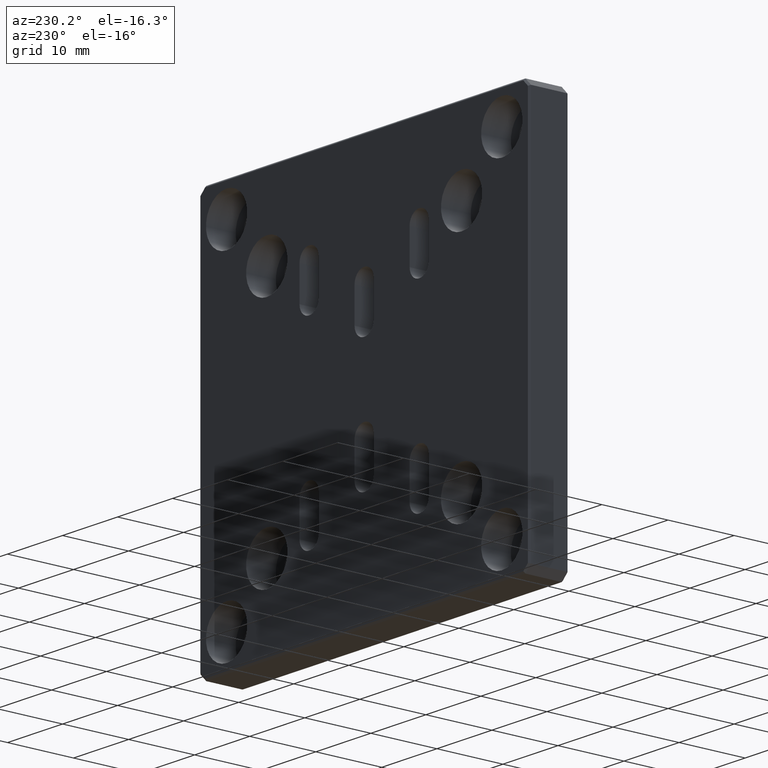
[diagram: clean part render]
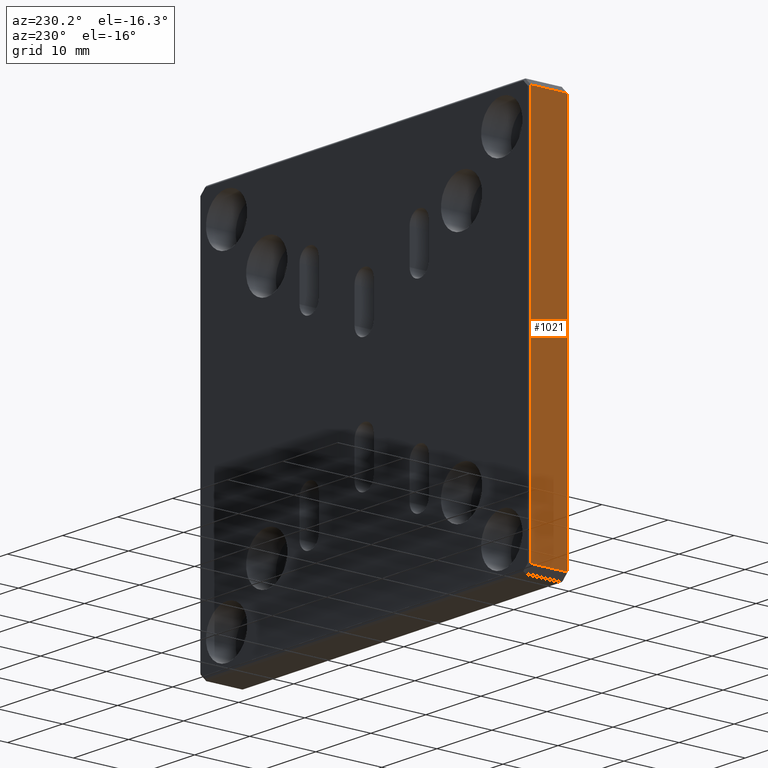
[diagram: same view with one face highlighted and labeled with its STEP entity id]
A machine part, auxiliary view. The second image highlights one B-rep face of the part: STEP entity #1021.
In plain terms, the highlighted planar face has unit normal (1, 0, -0).
Its self-contained STEP definition (entity closure, byte-faithful):
#28 = ORIENTED_EDGE ( 'NONE', *, *, #85, .T. ) ;
#85 = EDGE_CURVE ( 'NONE', #1777, #1314, #153, .T. ) ;
#153 = LINE ( 'NONE', #2031, #267 ) ;
#203 = CARTESIAN_POINT ( 'NONE',  ( -29.99999999999999289, 5.750000000000000000, 28.99999999999999645 ) ) ;
#207 = CARTESIAN_POINT ( 'NONE',  ( -30.00000000000000000, 0.2500000000000002220, -30.00000000000000711 ) ) ;
#267 = VECTOR ( 'NONE', #2978, 1000.000000000000000 ) ;
#269 = EDGE_CURVE ( 'NONE', #556, #691, #1922, .T. ) ;
#425 = AXIS2_PLACEMENT_3D ( 'NONE', #442, #1075, #2083 ) ;
#442 = CARTESIAN_POINT ( 'NONE',  ( -30.00000000000000000, 6.000000000000000000, -30.00000000000000711 ) ) ;
#556 = VERTEX_POINT ( 'NONE', #1155 ) ;
#668 = VECTOR ( 'NONE', #1399, 1000.000000000000000 ) ;
#691 = VERTEX_POINT ( 'NONE', #1402 ) ;
#967 = ORIENTED_EDGE ( 'NONE', *, *, #1063, .T. ) ;
#972 = DIRECTION ( 'NONE',  ( 0.000000000000000000, -1.000000000000000000, 0.000000000000000000 ) ) ;
#1021 = ADVANCED_FACE ( 'NONE', ( #2069 ), #2551, .F. ) ;
#1063 = EDGE_CURVE ( 'NONE', #691, #1777, #1170, .T. ) ;
#1075 = DIRECTION ( 'NONE',  ( 1.000000000000000000, 0.000000000000000000, -1.156482317317871478E-16 ) ) ;
#1130 = CARTESIAN_POINT ( 'NONE',  ( -29.99999999999999289, 0.2500000000000002220, 28.99999999999999645 ) ) ;
#1155 = CARTESIAN_POINT ( 'NONE',  ( -30.00000000000000000, 5.750000000000000000, -28.99999999999999645 ) ) ;
#1170 = LINE ( 'NONE', #207, #668 ) ;
#1290 = ORIENTED_EDGE ( 'NONE', *, *, #269, .T. ) ;
#1314 = VERTEX_POINT ( 'NONE', #203 ) ;
#1399 = DIRECTION ( 'NONE',  ( 1.156482317317871478E-16, 0.000000000000000000, 1.000000000000000000 ) ) ;
#1402 = CARTESIAN_POINT ( 'NONE',  ( -30.00000000000000000, 0.2500000000000002220, -28.99999999999999645 ) ) ;
#1407 = CARTESIAN_POINT ( 'NONE',  ( -30.00000000000000000, 6.000000000000000000, -28.99999999999999645 ) ) ;
#1435 = DIRECTION ( 'NONE',  ( -1.156482317317871478E-16, 0.000000000000000000, -1.000000000000000000 ) ) ;
#1465 = LINE ( 'NONE', #2398, #2797 ) ;
#1555 = ORIENTED_EDGE ( 'NONE', *, *, #2671, .T. ) ;
#1777 = VERTEX_POINT ( 'NONE', #1130 ) ;
#1922 = LINE ( 'NONE', #1407, #2413 ) ;
#2031 = CARTESIAN_POINT ( 'NONE',  ( -29.99999999999999289, 6.000000000000000000, 28.99999999999999645 ) ) ;
#2069 = FACE_OUTER_BOUND ( 'NONE', #2947, .T. ) ;
#2083 = DIRECTION ( 'NONE',  ( -1.156482317317871478E-16, 0.000000000000000000, -1.000000000000000000 ) ) ;
#2398 = CARTESIAN_POINT ( 'NONE',  ( -30.00000000000000000, 5.750000000000000000, -28.99999999999999645 ) ) ;
#2413 = VECTOR ( 'NONE', #972, 1000.000000000000000 ) ;
#2551 = PLANE ( 'NONE',  #425 ) ;
#2671 = EDGE_CURVE ( 'NONE', #1314, #556, #1465, .T. ) ;
#2797 = VECTOR ( 'NONE', #1435, 1000.000000000000000 ) ;
#2947 = EDGE_LOOP ( 'NONE', ( #1290, #967, #28, #1555 ) ) ;
#2978 = DIRECTION ( 'NONE',  ( 0.000000000000000000, 1.000000000000000000, 0.000000000000000000 ) ) ;